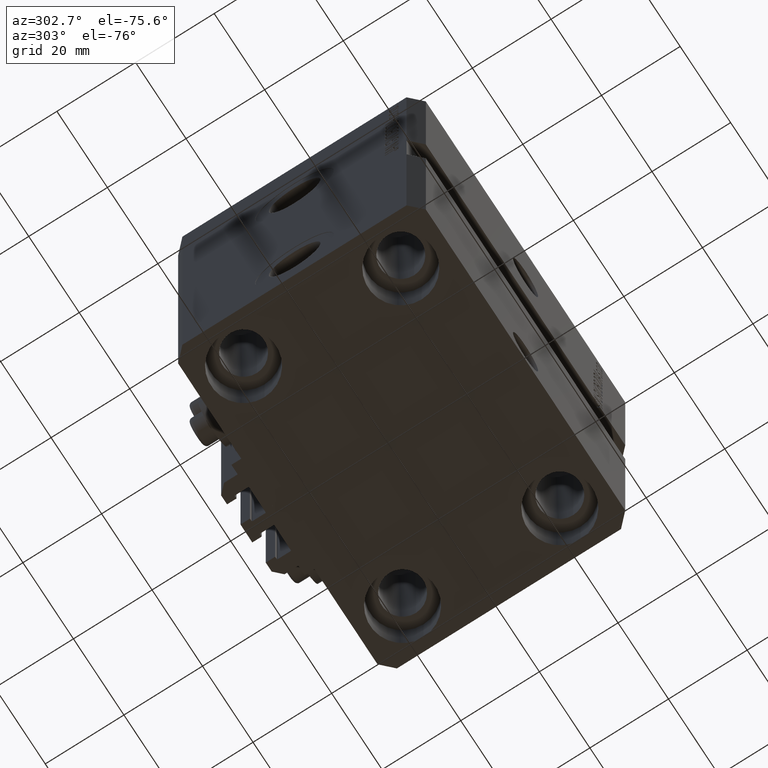
[diagram: clean part render]
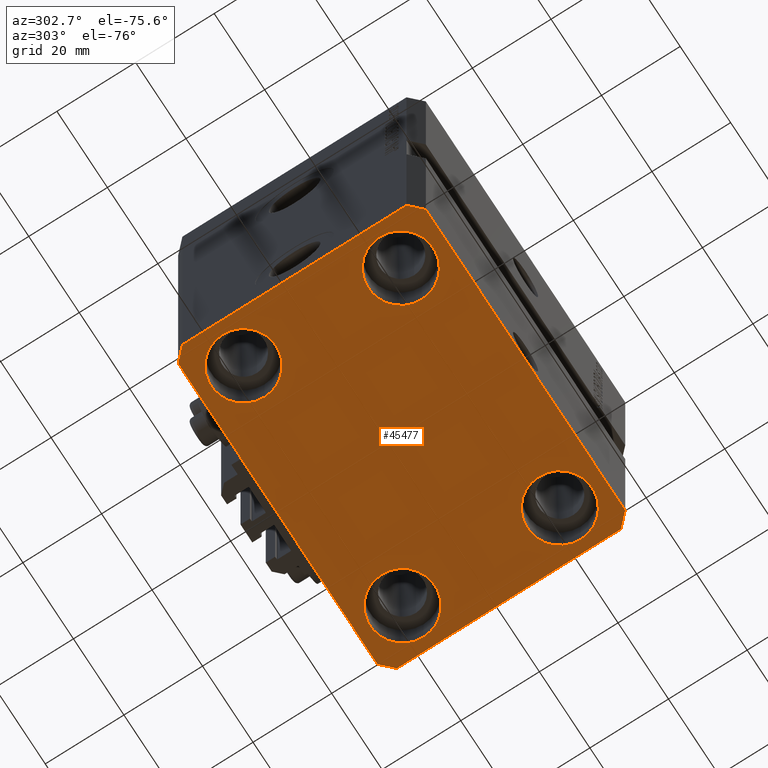
[diagram: same view with one face highlighted and labeled with its STEP entity id]
A machine part, auxiliary view. The second image highlights one B-rep face of the part: STEP entity #45477.
In plain terms, the highlighted planar face has unit normal (0, 0, 1).
Its self-contained STEP definition (entity closure, byte-faithful):
#369 = DIRECTION ( 'NONE',  ( -0.7071067811865471286, -0.7071067811865479058, 0.000000000000000000 ) ) ;
#653 = VERTEX_POINT ( 'NONE', #39972 ) ;
#944 = VERTEX_POINT ( 'NONE', #43922 ) ;
#1704 = EDGE_CURVE ( 'NONE', #944, #35578, #3584, .T. ) ;
#2072 = DIRECTION ( 'NONE',  ( -0.000000000000000000, -0.000000000000000000, 1.000000000000000000 ) ) ;
#2774 = DIRECTION ( 'NONE',  ( -0.7071067811865356934, 0.7071067811865594521, 0.000000000000000000 ) ) ;
#3459 = EDGE_LOOP ( 'NONE', ( #23966, #19158 ) ) ;
#3584 = LINE ( 'NONE', #30034, #47369 ) ;
#3628 = CIRCLE ( 'NONE', #45867, 8.249999999999992895 ) ;
#3673 = ORIENTED_EDGE ( 'NONE', *, *, #7491, .F. ) ;
#3853 = DIRECTION ( 'NONE',  ( 0.7071067811865483499, 0.7071067811865466846, 0.000000000000000000 ) ) ;
#3931 = CARTESIAN_POINT ( 'NONE',  ( 31.50000000000000000, -20.00000000000000000, -93.00000000000000000 ) ) ;
#4348 = DIRECTION ( 'NONE',  ( 1.000000000000000000, 0.000000000000000000, 0.000000000000000000 ) ) ;
#4518 = CARTESIAN_POINT ( 'NONE',  ( -42.50000000000000000, -28.50000000000000000, -93.00000000000000000 ) ) ;
#4565 = CARTESIAN_POINT ( 'NONE',  ( 39.50000000000000711, -31.50000000000000000, -93.00000000000000000 ) ) ;
#4728 = AXIS2_PLACEMENT_3D ( 'NONE', #32497, #6982, #33914 ) ;
#4750 = VERTEX_POINT ( 'NONE', #4518 ) ;
#5016 = EDGE_CURVE ( 'NONE', #23673, #18069, #34346, .T. ) ;
#5227 = VERTEX_POINT ( 'NONE', #19479 ) ;
#5925 = CARTESIAN_POINT ( 'NONE',  ( 31.50000000000000000, 20.00000000000001066, -93.00000000000000000 ) ) ;
#6794 = VECTOR ( 'NONE', #39759, 1000.000000000000000 ) ;
#6982 = DIRECTION ( 'NONE',  ( -0.000000000000000000, -0.000000000000000000, 1.000000000000000000 ) ) ;
#7491 = EDGE_CURVE ( 'NONE', #4750, #45865, #36990, .T. ) ;
#7806 = VERTEX_POINT ( 'NONE', #42200 ) ;
#8186 = VECTOR ( 'NONE', #2774, 1000.000000000000114 ) ;
#8425 = CIRCLE ( 'NONE', #35330, 8.250000000000000000 ) ;
#8592 = VERTEX_POINT ( 'NONE', #17372 ) ;
#8787 = CARTESIAN_POINT ( 'NONE',  ( -39.75000000000000000, 20.00000000000000000, -93.00000000000000000 ) ) ;
#9671 = DIRECTION ( 'NONE',  ( -0.000000000000000000, -0.000000000000000000, 1.000000000000000000 ) ) ;
#9690 = ORIENTED_EDGE ( 'NONE', *, *, #32825, .F. ) ;
#10104 = EDGE_LOOP ( 'NONE', ( #25911, #36271 ) ) ;
#10414 = PLANE ( 'NONE',  #16349 ) ;
#11667 = CIRCLE ( 'NONE', #21610, 8.249999999999992895 ) ;
#11786 = CARTESIAN_POINT ( 'NONE',  ( 39.50000000000000711, -31.50000000000000000, -93.00000000000000000 ) ) ;
#11829 = VERTEX_POINT ( 'NONE', #11786 ) ;
#12075 = DIRECTION ( 'NONE',  ( 1.000000000000000000, 0.000000000000000000, 0.000000000000000000 ) ) ;
#12089 = DIRECTION ( 'NONE',  ( 1.000000000000000000, 0.000000000000000000, 0.000000000000000000 ) ) ;
#12839 = AXIS2_PLACEMENT_3D ( 'NONE', #39509, #9671, #16886 ) ;
#12959 = ORIENTED_EDGE ( 'NONE', *, *, #37564, .F. ) ;
#13079 = VECTOR ( 'NONE', #369, 1000.000000000000000 ) ;
#13510 = EDGE_LOOP ( 'NONE', ( #34116, #42792 ) ) ;
#13731 = ORIENTED_EDGE ( 'NONE', *, *, #24666, .F. ) ;
#13837 = ORIENTED_EDGE ( 'NONE', *, *, #1704, .F. ) ;
#13849 = DIRECTION ( 'NONE',  ( 1.000000000000000000, 0.000000000000000000, 0.000000000000000000 ) ) ;
#14488 = CARTESIAN_POINT ( 'NONE',  ( 0.000000000000000000, 0.000000000000000000, -93.00000000000000000 ) ) ;
#14575 = CARTESIAN_POINT ( 'NONE',  ( -39.50000000000000711, 31.50000000000000000, -93.00000000000000000 ) ) ;
#14978 = CARTESIAN_POINT ( 'NONE',  ( -23.25000000000000000, 20.00000000000000000, -93.00000000000000000 ) ) ;
#15553 = EDGE_CURVE ( 'NONE', #8592, #31684, #43901, .T. ) ;
#16122 = EDGE_CURVE ( 'NONE', #31684, #8592, #11667, .T. ) ;
#16315 = CIRCLE ( 'NONE', #17107, 8.250000000000000000 ) ;
#16349 = AXIS2_PLACEMENT_3D ( 'NONE', #14488, #46749, #29168 ) ;
#16579 = EDGE_CURVE ( 'NONE', #26795, #653, #27765, .T. ) ;
#16886 = DIRECTION ( 'NONE',  ( 1.000000000000000000, 0.000000000000000000, 0.000000000000000000 ) ) ;
#17107 = AXIS2_PLACEMENT_3D ( 'NONE', #44791, #41422, #12075 ) ;
#17372 = CARTESIAN_POINT ( 'NONE',  ( 39.74999999999999289, 20.00000000000001066, -93.00000000000000000 ) ) ;
#18069 = VERTEX_POINT ( 'NONE', #14978 ) ;
#18246 = DIRECTION ( 'NONE',  ( 8.886653596232072440E-15, 1.000000000000000000, 0.000000000000000000 ) ) ;
#18254 = EDGE_LOOP ( 'NONE', ( #42241, #13731, #13837, #9690, #12959, #3673, #39436, #21461 ) ) ;
#18410 = LINE ( 'NONE', #14575, #13079 ) ;
#19158 = ORIENTED_EDGE ( 'NONE', *, *, #25419, .T. ) ;
#19479 = CARTESIAN_POINT ( 'NONE',  ( -42.50000000000000000, 28.50000000000000000, -93.00000000000000000 ) ) ;
#19715 = CARTESIAN_POINT ( 'NONE',  ( -39.50000000000000711, -31.50000000000000000, -93.00000000000000000 ) ) ;
#19874 = CARTESIAN_POINT ( 'NONE',  ( -42.50000000000000000, -28.50000000000000000, -93.00000000000000000 ) ) ;
#20870 = CARTESIAN_POINT ( 'NONE',  ( 31.50000000000000000, -20.00000000000000000, -93.00000000000000000 ) ) ;
#21288 = CARTESIAN_POINT ( 'NONE',  ( -31.50000000000000000, 20.00000000000000000, -93.00000000000000000 ) ) ;
#21461 = ORIENTED_EDGE ( 'NONE', *, *, #36143, .F. ) ;
#21485 = CIRCLE ( 'NONE', #28435, 8.249999999999992895 ) ;
#21610 = AXIS2_PLACEMENT_3D ( 'NONE', #5925, #2072, #23477 ) ;
#21929 = FACE_BOUND ( 'NONE', #13510, .T. ) ;
#23477 = DIRECTION ( 'NONE',  ( 1.000000000000000000, 0.000000000000000000, 0.000000000000000000 ) ) ;
#23568 = CARTESIAN_POINT ( 'NONE',  ( 39.50000000000056843, 31.50000000000000000, -93.00000000000000000 ) ) ;
#23673 = VERTEX_POINT ( 'NONE', #8787 ) ;
#23966 = ORIENTED_EDGE ( 'NONE', *, *, #35547, .T. ) ;
#24203 = DIRECTION ( 'NONE',  ( 0.7071067811865471286, -0.7071067811865479058, 0.000000000000000000 ) ) ;
#24521 = CARTESIAN_POINT ( 'NONE',  ( 39.74999999999999289, -20.00000000000000000, -93.00000000000000000 ) ) ;
#24666 = EDGE_CURVE ( 'NONE', #35578, #26795, #36440, .T. ) ;
#24861 = FACE_BOUND ( 'NONE', #3459, .T. ) ;
#25079 = CARTESIAN_POINT ( 'NONE',  ( -42.50000000000000000, 28.50000000000000000, -93.00000000000000000 ) ) ;
#25087 = FACE_BOUND ( 'NONE', #10104, .T. ) ;
#25419 = EDGE_CURVE ( 'NONE', #25938, #25769, #3628, .T. ) ;
#25735 = CARTESIAN_POINT ( 'NONE',  ( -39.50000000000000711, -31.50000000000000000, -93.00000000000000000 ) ) ;
#25769 = VERTEX_POINT ( 'NONE', #37538 ) ;
#25911 = ORIENTED_EDGE ( 'NONE', *, *, #45467, .T. ) ;
#25938 = VERTEX_POINT ( 'NONE', #24521 ) ;
#26134 = DIRECTION ( 'NONE',  ( 1.000000000000000000, 0.000000000000000000, 0.000000000000000000 ) ) ;
#26795 = VERTEX_POINT ( 'NONE', #23568 ) ;
#27109 = CIRCLE ( 'NONE', #47095, 8.250000000000000000 ) ;
#27765 = LINE ( 'NONE', #38832, #43925 ) ;
#28435 = AXIS2_PLACEMENT_3D ( 'NONE', #20870, #35553, #26134 ) ;
#28480 = DIRECTION ( 'NONE',  ( -0.000000000000000000, -0.000000000000000000, 1.000000000000000000 ) ) ;
#28724 = EDGE_CURVE ( 'NONE', #5227, #4750, #44527, .T. ) ;
#28940 = CARTESIAN_POINT ( 'NONE',  ( -39.75000000000000000, -20.00000000000000000, -93.00000000000000000 ) ) ;
#29168 = DIRECTION ( 'NONE',  ( 1.000000000000000000, 0.000000000000000000, -0.000000000000000000 ) ) ;
#29265 = ORIENTED_EDGE ( 'NONE', *, *, #15553, .T. ) ;
#29786 = VECTOR ( 'NONE', #24203, 1000.000000000000000 ) ;
#30034 = CARTESIAN_POINT ( 'NONE',  ( 42.50000000000000711, -28.50000000000000355, -93.00000000000000000 ) ) ;
#30130 = EDGE_LOOP ( 'NONE', ( #40819, #29265 ) ) ;
#31684 = VERTEX_POINT ( 'NONE', #35389 ) ;
#31846 = DIRECTION ( 'NONE',  ( 1.000000000000000000, 0.000000000000000000, 0.000000000000000000 ) ) ;
#32497 = CARTESIAN_POINT ( 'NONE',  ( 31.50000000000000000, 20.00000000000001066, -93.00000000000000000 ) ) ;
#32825 = EDGE_CURVE ( 'NONE', #11829, #944, #33211, .T. ) ;
#33211 = LINE ( 'NONE', #4565, #45234 ) ;
#33914 = DIRECTION ( 'NONE',  ( 1.000000000000000000, 0.000000000000000000, 0.000000000000000000 ) ) ;
#34116 = ORIENTED_EDGE ( 'NONE', *, *, #5016, .T. ) ;
#34346 = CIRCLE ( 'NONE', #12839, 8.250000000000000000 ) ;
#35330 = AXIS2_PLACEMENT_3D ( 'NONE', #21288, #46792, #13849 ) ;
#35389 = CARTESIAN_POINT ( 'NONE',  ( 23.25000000000000355, 20.00000000000001066, -93.00000000000000000 ) ) ;
#35547 = EDGE_CURVE ( 'NONE', #25769, #25938, #21485, .T. ) ;
#35553 = DIRECTION ( 'NONE',  ( -0.000000000000000000, -0.000000000000000000, 1.000000000000000000 ) ) ;
#35578 = VERTEX_POINT ( 'NONE', #37200 ) ;
#35778 = EDGE_CURVE ( 'NONE', #18069, #23673, #8425, .T. ) ;
#36143 = EDGE_CURVE ( 'NONE', #653, #5227, #18410, .T. ) ;
#36195 = VECTOR ( 'NONE', #4348, 1000.000000000000000 ) ;
#36271 = ORIENTED_EDGE ( 'NONE', *, *, #46352, .T. ) ;
#36399 = CARTESIAN_POINT ( 'NONE',  ( -31.50000000000000000, -20.00000000000000000, -93.00000000000000000 ) ) ;
#36440 = LINE ( 'NONE', #40267, #8186 ) ;
#36990 = LINE ( 'NONE', #19874, #29786 ) ;
#37200 = CARTESIAN_POINT ( 'NONE',  ( 42.50000000000051870, 28.49999999999995381, -93.00000000000000000 ) ) ;
#37361 = DIRECTION ( 'NONE',  ( -0.000000000000000000, -0.000000000000000000, 1.000000000000000000 ) ) ;
#37538 = CARTESIAN_POINT ( 'NONE',  ( 23.25000000000000355, -20.00000000000000000, -93.00000000000000000 ) ) ;
#37564 = EDGE_CURVE ( 'NONE', #45865, #11829, #41135, .T. ) ;
#38832 = CARTESIAN_POINT ( 'NONE',  ( 39.50000000000056843, 31.50000000000000000, -93.00000000000000000 ) ) ;
#39436 = ORIENTED_EDGE ( 'NONE', *, *, #28724, .F. ) ;
#39509 = CARTESIAN_POINT ( 'NONE',  ( -31.50000000000000000, 20.00000000000000000, -93.00000000000000000 ) ) ;
#39543 = FACE_BOUND ( 'NONE', #30130, .T. ) ;
#39591 = VERTEX_POINT ( 'NONE', #28940 ) ;
#39759 = DIRECTION ( 'NONE',  ( 0.000000000000000000, -1.000000000000000000, 0.000000000000000000 ) ) ;
#39972 = CARTESIAN_POINT ( 'NONE',  ( -39.50000000000000711, 31.50000000000000000, -93.00000000000000000 ) ) ;
#40267 = CARTESIAN_POINT ( 'NONE',  ( 42.50000000000051870, 28.49999999999995381, -93.00000000000000000 ) ) ;
#40819 = ORIENTED_EDGE ( 'NONE', *, *, #16122, .T. ) ;
#41135 = LINE ( 'NONE', #19715, #36195 ) ;
#41422 = DIRECTION ( 'NONE',  ( -0.000000000000000000, -0.000000000000000000, 1.000000000000000000 ) ) ;
#42200 = CARTESIAN_POINT ( 'NONE',  ( -23.25000000000000000, -20.00000000000000000, -93.00000000000000000 ) ) ;
#42241 = ORIENTED_EDGE ( 'NONE', *, *, #16579, .F. ) ;
#42792 = ORIENTED_EDGE ( 'NONE', *, *, #35778, .T. ) ;
#43901 = CIRCLE ( 'NONE', #4728, 8.249999999999992895 ) ;
#43922 = CARTESIAN_POINT ( 'NONE',  ( 42.50000000000000711, -28.50000000000000355, -93.00000000000000000 ) ) ;
#43925 = VECTOR ( 'NONE', #45325, 1000.000000000000000 ) ;
#44527 = LINE ( 'NONE', #25079, #6794 ) ;
#44791 = CARTESIAN_POINT ( 'NONE',  ( -31.50000000000000000, -20.00000000000000000, -93.00000000000000000 ) ) ;
#45234 = VECTOR ( 'NONE', #3853, 1000.000000000000000 ) ;
#45325 = DIRECTION ( 'NONE',  ( -1.000000000000000000, 0.000000000000000000, 0.000000000000000000 ) ) ;
#45467 = EDGE_CURVE ( 'NONE', #39591, #7806, #27109, .T. ) ;
#45477 = ADVANCED_FACE ( 'NONE', ( #25087, #24861, #39543, #21929, #47442 ), #10414, .F. ) ;
#45865 = VERTEX_POINT ( 'NONE', #25735 ) ;
#45867 = AXIS2_PLACEMENT_3D ( 'NONE', #3931, #37361, #12089 ) ;
#46352 = EDGE_CURVE ( 'NONE', #7806, #39591, #16315, .T. ) ;
#46749 = DIRECTION ( 'NONE',  ( 0.000000000000000000, 0.000000000000000000, 1.000000000000000000 ) ) ;
#46792 = DIRECTION ( 'NONE',  ( -0.000000000000000000, -0.000000000000000000, 1.000000000000000000 ) ) ;
#47095 = AXIS2_PLACEMENT_3D ( 'NONE', #36399, #28480, #31846 ) ;
#47369 = VECTOR ( 'NONE', #18246, 1000.000000000000000 ) ;
#47442 = FACE_OUTER_BOUND ( 'NONE', #18254, .T. ) ;